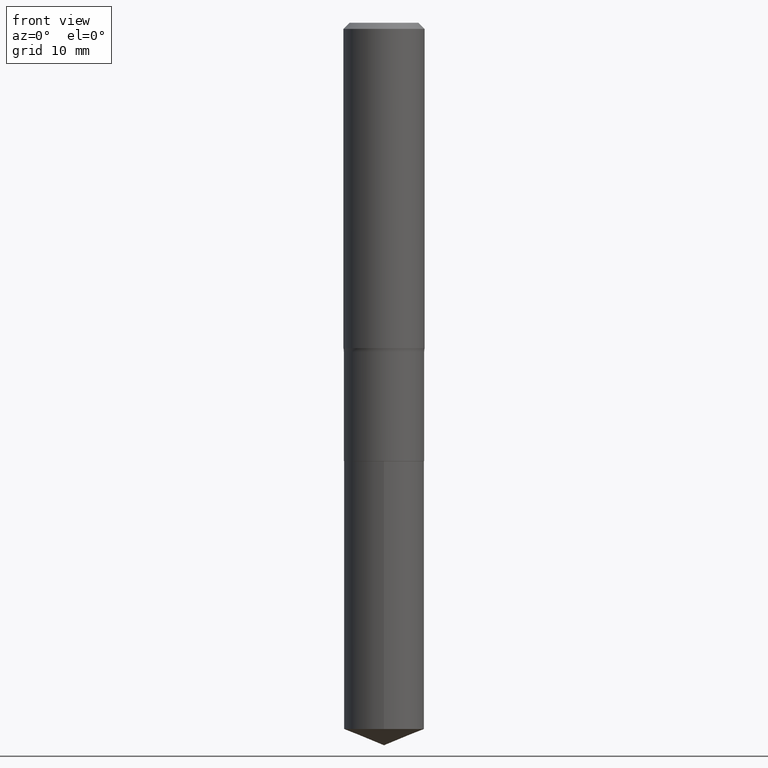
[diagram: clean part render]
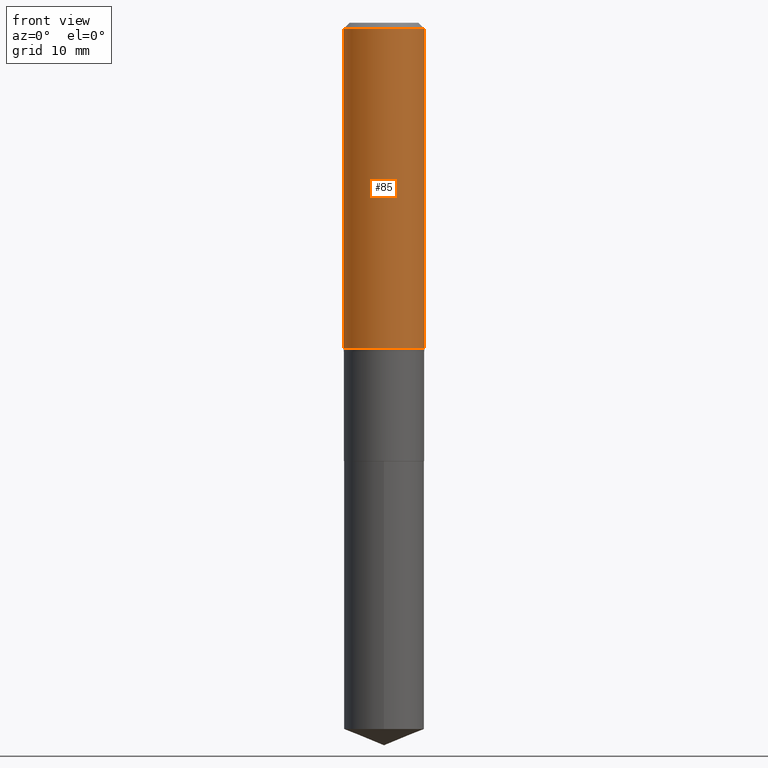
[diagram: same view with one face highlighted and labeled with its STEP entity id]
A machine part, front view. The second image highlights one B-rep face of the part: STEP entity #85.
In plain terms, the highlighted cylindrical surface (partial cylindrical patch) has radius 5 mm, axis along (-0, 0, 1).
Its self-contained STEP definition (entity closure, byte-faithful):
#11 = EDGE_CURVE ( 'NONE', #280, #322, #224, .T. ) ;
#23 = DIRECTION ( 'NONE',  ( -2.445468806185136597E-29, 3.491481338843145583E-15, 1.000000000000000000 ) ) ;
#26 = DIRECTION ( 'NONE',  ( 1.000000000000000000, -6.982962677686269866E-15, 0.000000000000000000 ) ) ;
#43 = CARTESIAN_POINT ( 'NONE',  ( -0.1968500000000002470, -4.109695078470121619E-15, -1.577668020886232814 ) ) ;
#45 = VERTEX_POINT ( 'NONE', #488 ) ;
#47 = VECTOR ( 'NONE', #74, 39.37007874015748143 ) ;
#50 = ORIENTED_EDGE ( 'NONE', *, *, #11, .T. ) ;
#54 = CARTESIAN_POINT ( 'NONE',  ( 0.1968500000000000250, -1.477690918335233294E-15, -0.02952750000000020636 ) ) ;
#63 = DIRECTION ( 'NONE',  ( 1.000000000000000000, -6.982962677686265922E-15, 0.000000000000000000 ) ) ;
#68 = DIRECTION ( 'NONE',  ( -2.445468806185136597E-29, 3.491481338843145583E-15, 1.000000000000000000 ) ) ;
#71 = LINE ( 'NONE', #179, #47 ) ;
#73 = AXIS2_PLACEMENT_3D ( 'NONE', #295, #68, #26 ) ;
#74 = DIRECTION ( 'NONE',  ( -2.445468806185136877E-29, 3.491481338843145188E-15, 1.000000000000000000 ) ) ;
#85 = ADVANCED_FACE ( 'NONE', ( #444 ), #213, .T. ) ;
#88 = CIRCLE ( 'NONE', #212, 0.1968500000000000250 ) ;
#131 = EDGE_CURVE ( 'NONE', #280, #45, #71, .T. ) ;
#152 = LINE ( 'NONE', #273, #433 ) ;
#154 = EDGE_CURVE ( 'NONE', #322, #364, #152, .T. ) ;
#179 = CARTESIAN_POINT ( 'NONE',  ( -0.1968500000000001082, 1.398703375343757985E-15, -9.682923725166787881E-30 ) ) ;
#199 = DIRECTION ( 'NONE',  ( -2.445468806185136597E-29, 3.491481338843145583E-15, 1.000000000000000000 ) ) ;
#212 = AXIS2_PLACEMENT_3D ( 'NONE', #241, #199, #63 ) ;
#213 = CYLINDRICAL_SURFACE ( 'NONE', #457, 0.1968500000000001082 ) ;
#222 = CARTESIAN_POINT ( 'NONE',  ( 0.000000000000000000, 0.000000000000000000, 0.000000000000000000 ) ) ;
#224 = CIRCLE ( 'NONE', #73, 0.1968500000000002470 ) ;
#241 = CARTESIAN_POINT ( 'NONE',  ( 7.220858017463212989E-31, -1.030947152326917102E-16, -0.02952750000000020636 ) ) ;
#273 = CARTESIAN_POINT ( 'NONE',  ( 0.1968500000000001082, -1.374596203102542397E-15, 9.598753983154305062E-30 ) ) ;
#280 = VERTEX_POINT ( 'NONE', #43 ) ;
#295 = CARTESIAN_POINT ( 'NONE',  ( 3.858137931593122664E-29, -5.508398453813880195E-15, -1.577668020886232814 ) ) ;
#322 = VERTEX_POINT ( 'NONE', #416 ) ;
#332 = DIRECTION ( 'NONE',  ( 1.000000000000000000, -6.982962677686266711E-15, 4.876176775795935793E-29 ) ) ;
#337 = ORIENTED_EDGE ( 'NONE', *, *, #154, .T. ) ;
#350 = DIRECTION ( 'NONE',  ( -2.445468806185136877E-29, 3.491481338843145188E-15, 1.000000000000000000 ) ) ;
#357 = EDGE_LOOP ( 'NONE', ( #392, #50, #337, #386 ) ) ;
#364 = VERTEX_POINT ( 'NONE', #54 ) ;
#386 = ORIENTED_EDGE ( 'NONE', *, *, #424, .F. ) ;
#392 = ORIENTED_EDGE ( 'NONE', *, *, #131, .F. ) ;
#416 = CARTESIAN_POINT ( 'NONE',  ( 0.1968500000000002470, -6.882994656916424959E-15, -1.577668020886232814 ) ) ;
#424 = EDGE_CURVE ( 'NONE', #45, #364, #88, .T. ) ;
#433 = VECTOR ( 'NONE', #350, 39.37007874015748143 ) ;
#444 = FACE_OUTER_BOUND ( 'NONE', #357, .T. ) ;
#457 = AXIS2_PLACEMENT_3D ( 'NONE', #222, #23, #332 ) ;
#488 = CARTESIAN_POINT ( 'NONE',  ( -0.1968500000000000250, -1.407043209179527561E-15, -0.02952750000000020636 ) ) ;